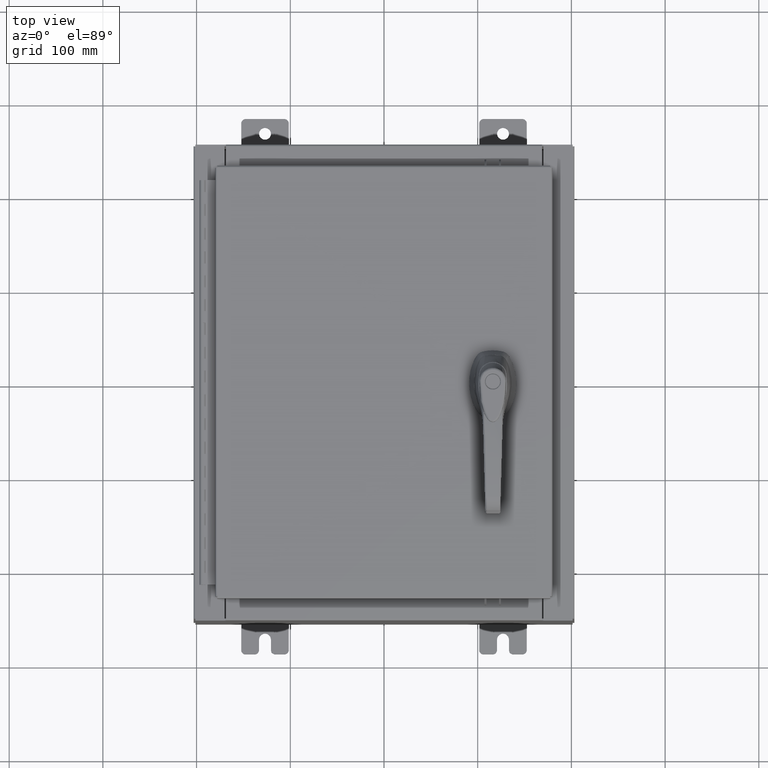
[diagram: clean part render]
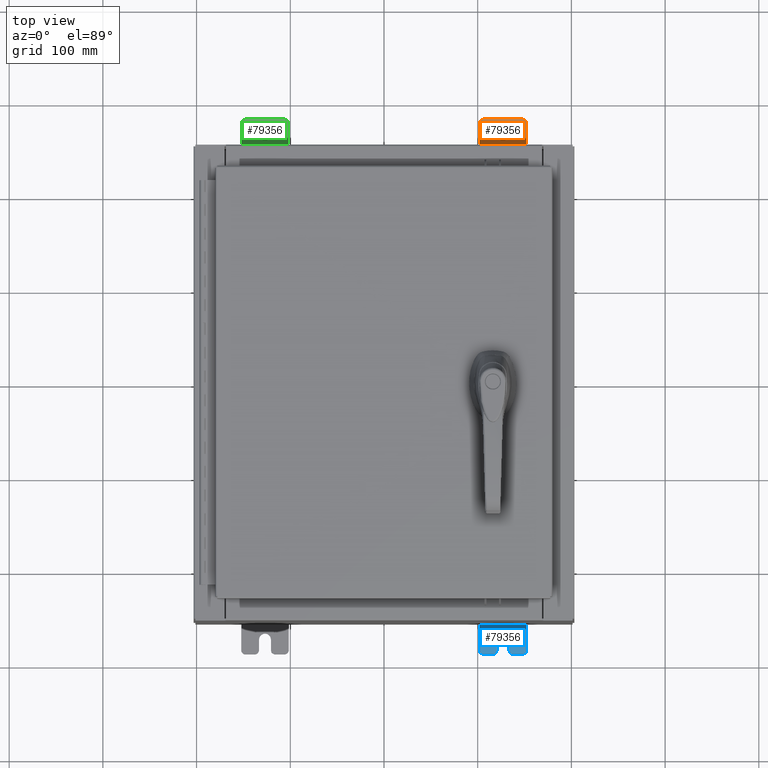
[diagram: same view with three faces highlighted in distinct colors, each labeled with its STEP entity id]
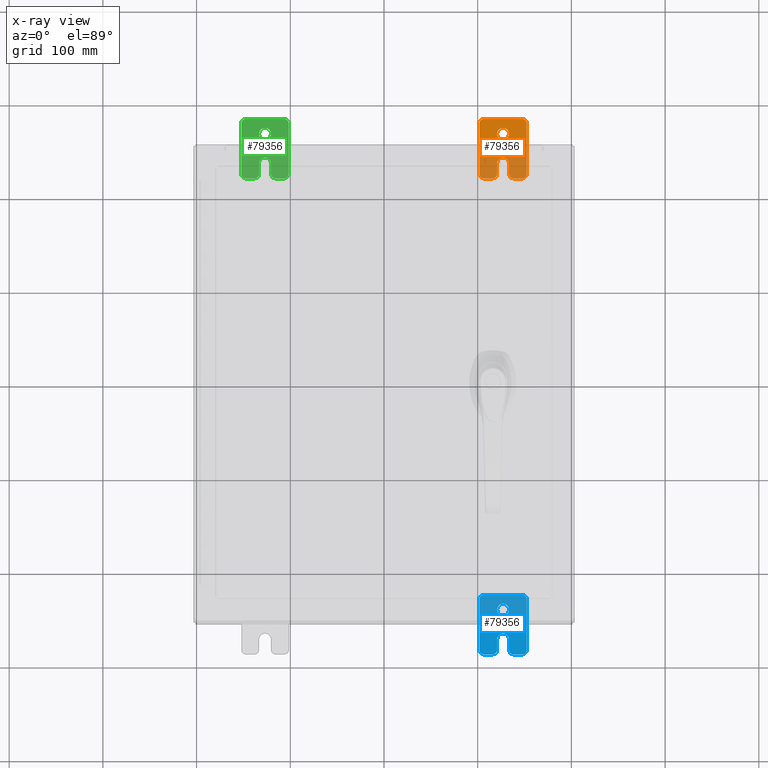
[diagram: x-ray of the same camera — body ghosted, the three highlighted faces saturated]
A machine part, top view with three faces highlighted in distinct colors.
The next image is the same camera in x-ray (body ghosted, the three faces saturated) — at least one of them is partly hidden behind the body in this view.
Their STEP definitions:

[orange] entity #79356 — the highlighted planar face has unit normal (0, 0, 1).
#63 = EDGE_CURVE ( 'NONE', #74154, #75641, #40511, .T. ) ;
#1338 = CARTESIAN_POINT ( 'NONE',  ( 0.0000000000000000000, -1.060000000000001600, 0.8099999999999978300 ) ) ;
#1540 = VERTEX_POINT ( 'NONE', #70888 ) ;
#2170 = ORIENTED_EDGE ( 'NONE', *, *, #15213, .F. ) ;
#4001 = CARTESIAN_POINT ( 'NONE',  ( 0.0000000000000000000, 1.059999999999996300, 0.8099999999999938400 ) ) ;
#4190 = VERTEX_POINT ( 'NONE', #11108 ) ;
#5420 = AXIS2_PLACEMENT_3D ( 'NONE', #1338, #60386, #9862 ) ;
#6063 = PLANE ( 'NONE',  #100843 ) ;
#8428 = FACE_OUTER_BOUND ( 'NONE', #12739, .T. ) ;
#8539 = VERTEX_POINT ( 'NONE', #33837 ) ;
#8693 = CARTESIAN_POINT ( 'NONE',  ( 0.0000000000000000000, -1.060000000000003400, -0.4400000000000005000 ) ) ;
#9027 = CARTESIAN_POINT ( 'NONE',  ( 4.039428427013647300E-016, 0.6249999999999992200, -9.783840404509077400E-018 ) ) ;
#9862 = DIRECTION ( 'NONE',  ( 0.0000000000000000000, 0.0000000000000000000, -1.000000000000000000 ) ) ;
#10707 = CARTESIAN_POINT ( 'NONE',  ( 4.780733988912460100E-016, -0.6249999999999993300, 5.858939755051854500E-017 ) ) ;
#11108 = CARTESIAN_POINT ( 'NONE',  ( 0.0000000000000000000, -1.250000000000002400, 0.8099999999999980500 ) ) ;
#12178 = VERTEX_POINT ( 'NONE', #56199 ) ;
#12205 = EDGE_CURVE ( 'NONE', #70939, #34078, #78589, .T. ) ;
#12739 = EDGE_LOOP ( 'NONE', ( #30238, #95864, #66209, #50522, #19311, #23119, #79404, #55736, #64327, #104050, #98022, #28269, #105781, #59422 ) ) ;
#13902 = EDGE_CURVE ( 'NONE', #58920, #12178, #69188, .T. ) ;
#14054 = DIRECTION ( 'NONE',  ( 0.0000000000000000000, 0.0000000000000000000, -1.000000000000000000 ) ) ;
#15213 = EDGE_CURVE ( 'NONE', #101962, #47911, #107274, .T. ) ;
#16481 = LINE ( 'NONE', #95394, #21755 ) ;
#17232 = DIRECTION ( 'NONE',  ( 0.0000000000000000000, 0.0000000000000000000, -1.000000000000000000 ) ) ;
#17574 = DIRECTION ( 'NONE',  ( -5.163192708025533800E-017, 0.0000000000000000000, -1.000000000000000000 ) ) ;
#17577 = CARTESIAN_POINT ( 'NONE',  ( 0.0000000000000000000, 1.059999999999993600, -0.8100000000000089400 ) ) ;
#18076 = DIRECTION ( 'NONE',  ( 0.0000000000000000000, 1.639108796198553600E-015, 1.000000000000000000 ) ) ;
#19233 = DIRECTION ( 'NONE',  ( -6.523827964459551700E-016, -1.000000000000000000, 0.0000000000000000000 ) ) ;
#19311 = ORIENTED_EDGE ( 'NONE', *, *, #20942, .T. ) ;
#19789 = CARTESIAN_POINT ( 'NONE',  ( 4.168508244714285900E-016, 0.6249999999999992200, 0.2499999999999999200 ) ) ;
#20924 = CARTESIAN_POINT ( 'NONE',  ( 0.0000000000000000000, -1.060000000000004100, -0.8100000000000050500 ) ) ;
#20942 = EDGE_CURVE ( 'NONE', #12178, #8539, #24412, .T. ) ;
#21755 = VECTOR ( 'NONE', #36419, 39.37007874015748100 ) ;
#23118 = DIRECTION ( 'NONE',  ( -0.0000000000000000000, 0.0000000000000000000, -1.000000000000000000 ) ) ;
#23119 = ORIENTED_EDGE ( 'NONE', *, *, #42427, .T. ) ;
#24412 = LINE ( 'NONE', #39401, #46761 ) ;
#24998 = VECTOR ( 'NONE', #51723, 39.37007874015748100 ) ;
#26014 = DIRECTION ( 'NONE',  ( 0.0000000000000000000, 0.0000000000000000000, -1.000000000000000000 ) ) ;
#26322 = CARTESIAN_POINT ( 'NONE',  ( 0.0000000000000000000, -1.250000000000002200, 0.9999999999999992200 ) ) ;
#27627 = LINE ( 'NONE', #26322, #24998 ) ;
#28269 = ORIENTED_EDGE ( 'NONE', *, *, #38542, .T. ) ;
#28487 = CIRCLE ( 'NONE', #87081, 0.1900000000000011100 ) ;
#28857 = CARTESIAN_POINT ( 'NONE',  ( 0.0000000000000000000, -1.060000000000004500, -1.000000000000006400 ) ) ;
#29272 = DIRECTION ( 'NONE',  ( 1.000000000000000000, 0.0000000000000000000, -0.0000000000000000000 ) ) ;
#29636 = LINE ( 'NONE', #58112, #94250 ) ;
#30238 = ORIENTED_EDGE ( 'NONE', *, *, #12205, .T. ) ;
#31206 = CARTESIAN_POINT ( 'NONE',  ( 0.0000000000000000000, 1.249999999999997600, 0.9999999999999951200 ) ) ;
#31248 = AXIS2_PLACEMENT_3D ( 'NONE', #4001, #64547, #14054 ) ;
#31309 = DIRECTION ( 'NONE',  ( 6.556435184794182400E-016, 1.000000000000000000, 0.0000000000000000000 ) ) ;
#32064 = EDGE_CURVE ( 'NONE', #34078, #4190, #32588, .T. ) ;
#32588 = CIRCLE ( 'NONE', #5420, 0.1900000000000011100 ) ;
#32618 = VECTOR ( 'NONE', #105106, 39.37007874015748100 ) ;
#32654 = CARTESIAN_POINT ( 'NONE',  ( 4.039428427013647300E-016, 0.6249999999999992200, -9.783840404509077400E-018 ) ) ;
#33837 = CARTESIAN_POINT ( 'NONE',  ( 0.0000000000000000000, -0.6249999999999992200, 0.2500000000000005000 ) ) ;
#34078 = VERTEX_POINT ( 'NONE', #71648 ) ;
#35787 = CIRCLE ( 'NONE', #70936, 0.2499999999999999200 ) ;
#35800 = EDGE_LOOP ( 'NONE', ( #2170, #86138 ) ) ;
#36419 = DIRECTION ( 'NONE',  ( -6.556435184794182400E-016, -1.000000000000000000, -1.639108796198545600E-016 ) ) ;
#37588 = AXIS2_PLACEMENT_3D ( 'NONE', #79712, #29272, #88213 ) ;
#38444 = EDGE_CURVE ( 'NONE', #4190, #58920, #29636, .T. ) ;
#38542 = EDGE_CURVE ( 'NONE', #83819, #103251, #49416, .T. ) ;
#38728 = CIRCLE ( 'NONE', #31248, 0.1900000000000011100 ) ;
#39401 = CARTESIAN_POINT ( 'NONE',  ( 6.829619984160658000E-017, -1.250000000000003800, 0.2500000000000005000 ) ) ;
#39724 = EDGE_CURVE ( 'NONE', #1540, #70939, #38728, .T. ) ;
#40511 = CIRCLE ( 'NONE', #60687, 0.1900000000000011100 ) ;
#41139 = DIRECTION ( 'NONE',  ( -5.163192708025533800E-017, 0.0000000000000000000, -1.000000000000000000 ) ) ;
#42427 = EDGE_CURVE ( 'NONE', #8539, #72920, #35787, .T. ) ;
#43438 = DIRECTION ( 'NONE',  ( 0.0000000000000000000, 0.0000000000000000000, -1.000000000000000000 ) ) ;
#43969 = VERTEX_POINT ( 'NONE', #53438 ) ;
#44004 = CARTESIAN_POINT ( 'NONE',  ( 0.0000000000000000000, 1.059999999999996500, 0.9999999999999953400 ) ) ;
#46761 = VECTOR ( 'NONE', #31309, 39.37007874015748100 ) ;
#47911 = VERTEX_POINT ( 'NONE', #19789 ) ;
#48086 = EDGE_CURVE ( 'NONE', #47911, #101962, #50649, .T. ) ;
#48129 = DIRECTION ( 'NONE',  ( 0.0000000000000000000, -1.000000000000000000, 1.639108796198558100E-015 ) ) ;
#49416 = CIRCLE ( 'NONE', #68565, 0.1900000000000011100 ) ;
#50522 = ORIENTED_EDGE ( 'NONE', *, *, #13902, .T. ) ;
#50648 = FACE_BOUND ( 'NONE', #35800, .T. ) ;
#50649 = CIRCLE ( 'NONE', #57080, 0.2499999999999999200 ) ;
#51723 = DIRECTION ( 'NONE',  ( 0.0000000000000000000, -1.639108796198553600E-015, -1.000000000000000000 ) ) ;
#52291 = LINE ( 'NONE', #80388, #32618 ) ;
#53438 = CARTESIAN_POINT ( 'NONE',  ( 1.928684683526964400E-016, -1.060000000000003400, -0.2499999999999994400 ) ) ;
#53701 = EDGE_CURVE ( 'NONE', #91617, #74154, #27627, .T. ) ;
#55736 = ORIENTED_EDGE ( 'NONE', *, *, #89139, .T. ) ;
#56166 = VECTOR ( 'NONE', #48129, 39.37007874015748100 ) ;
#56199 = CARTESIAN_POINT ( 'NONE',  ( 1.928684683526972300E-016, -1.060000000000002100, 0.2500000000000005000 ) ) ;
#57080 = AXIS2_PLACEMENT_3D ( 'NONE', #32654, #91593, #41139 ) ;
#58112 = CARTESIAN_POINT ( 'NONE',  ( 0.0000000000000000000, -1.250000000000002200, 0.9999999999999992200 ) ) ;
#58920 = VERTEX_POINT ( 'NONE', #65140 ) ;
#59422 = ORIENTED_EDGE ( 'NONE', *, *, #39724, .T. ) ;
#59749 = CARTESIAN_POINT ( 'NONE',  ( 4.780733988912460100E-016, -0.6249999999999993300, -0.2499999999999998600 ) ) ;
#60386 = DIRECTION ( 'NONE',  ( 1.000000000000000000, 0.0000000000000000000, -0.0000000000000000000 ) ) ;
#60687 = AXIS2_PLACEMENT_3D ( 'NONE', #20924, #82285, #43438 ) ;
#61489 = CARTESIAN_POINT ( 'NONE',  ( 0.0000000000000000000, -1.250000000000004700, -0.4400000000000002200 ) ) ;
#62030 = EDGE_CURVE ( 'NONE', #72920, #43969, #16481, .T. ) ;
#64327 = ORIENTED_EDGE ( 'NONE', *, *, #53701, .T. ) ;
#64547 = DIRECTION ( 'NONE',  ( 1.000000000000000000, 0.0000000000000000000, -0.0000000000000000000 ) ) ;
#65105 = CARTESIAN_POINT ( 'NONE',  ( 0.0000000000000000000, 0.0000000000000000000, 0.0000000000000000000 ) ) ;
#65140 = CARTESIAN_POINT ( 'NONE',  ( 0.0000000000000000000, -1.250000000000003100, 0.4400000000000020000 ) ) ;
#66209 = ORIENTED_EDGE ( 'NONE', *, *, #38444, .T. ) ;
#66619 = DIRECTION ( 'NONE',  ( 0.0000000000000000000, -1.639108796198553600E-015, -1.000000000000000000 ) ) ;
#67693 = DIRECTION ( 'NONE',  ( 1.000000000000000000, 0.0000000000000000000, -0.0000000000000000000 ) ) ;
#68022 = DIRECTION ( 'NONE',  ( 1.000000000000000000, -0.0000000000000000000, -5.163192708025532000E-017 ) ) ;
#68510 = CARTESIAN_POINT ( 'NONE',  ( 0.0000000000000000000, 1.249999999999994200, -1.000000000000010400 ) ) ;
#68565 = AXIS2_PLACEMENT_3D ( 'NONE', #17577, #76491, #26014 ) ;
#69188 = CIRCLE ( 'NONE', #37588, 0.1900000000000011400 ) ;
#69662 = DIRECTION ( 'NONE',  ( -1.000000000000000000, 6.523827964459549700E-016, 5.163192708025532000E-017 ) ) ;
#70888 = CARTESIAN_POINT ( 'NONE',  ( 0.0000000000000000000, 1.249999999999997300, 0.8099999999999935000 ) ) ;
#70936 = AXIS2_PLACEMENT_3D ( 'NONE', #10707, #69662, #19233 ) ;
#70939 = VERTEX_POINT ( 'NONE', #44004 ) ;
#71648 = CARTESIAN_POINT ( 'NONE',  ( 0.0000000000000000000, -1.060000000000001200, 0.9999999999999988900 ) ) ;
#72920 = VERTEX_POINT ( 'NONE', #59749 ) ;
#73552 = DIRECTION ( 'NONE',  ( 1.000000000000000000, 0.0000000000000000000, -0.0000000000000000000 ) ) ;
#74154 = VERTEX_POINT ( 'NONE', #97762 ) ;
#75189 = CARTESIAN_POINT ( 'NONE',  ( 3.910348609313009100E-016, 0.6249999999999992200, -0.2499999999999999200 ) ) ;
#75641 = VERTEX_POINT ( 'NONE', #28857 ) ;
#75735 = EDGE_CURVE ( 'NONE', #75641, #83819, #52291, .T. ) ;
#76491 = DIRECTION ( 'NONE',  ( 1.000000000000000000, 0.0000000000000000000, -0.0000000000000000000 ) ) ;
#78589 = LINE ( 'NONE', #31206, #56166 ) ;
#79356 = ADVANCED_FACE ( 'NONE', ( #50648, #8428 ), #6063, .T. ) ;
#79404 = ORIENTED_EDGE ( 'NONE', *, *, #62030, .T. ) ;
#79712 = CARTESIAN_POINT ( 'NONE',  ( 0.0000000000000000000, -1.060000000000002100, 0.4400000000000016700 ) ) ;
#80388 = CARTESIAN_POINT ( 'NONE',  ( 0.0000000000000000000, -1.250000000000005600, -1.000000000000006200 ) ) ;
#82285 = DIRECTION ( 'NONE',  ( 1.000000000000000000, 0.0000000000000000000, -0.0000000000000000000 ) ) ;
#83431 = LINE ( 'NONE', #68510, #97885 ) ;
#83819 = VERTEX_POINT ( 'NONE', #101698 ) ;
#84266 = AXIS2_PLACEMENT_3D ( 'NONE', #9027, #68022, #17574 ) ;
#86138 = ORIENTED_EDGE ( 'NONE', *, *, #48086, .F. ) ;
#87081 = AXIS2_PLACEMENT_3D ( 'NONE', #8693, #67693, #17232 ) ;
#88213 = DIRECTION ( 'NONE',  ( 0.0000000000000000000, 0.0000000000000000000, -1.000000000000000000 ) ) ;
#89139 = EDGE_CURVE ( 'NONE', #43969, #91617, #28487, .T. ) ;
#91175 = CARTESIAN_POINT ( 'NONE',  ( 0.0000000000000000000, 1.249999999999994700, -0.8100000000000092700 ) ) ;
#91593 = DIRECTION ( 'NONE',  ( 1.000000000000000000, -0.0000000000000000000, -5.163192708025532000E-017 ) ) ;
#91617 = VERTEX_POINT ( 'NONE', #61489 ) ;
#94250 = VECTOR ( 'NONE', #66619, 39.37007874015748100 ) ;
#94850 = EDGE_CURVE ( 'NONE', #103251, #1540, #83431, .T. ) ;
#95394 = CARTESIAN_POINT ( 'NONE',  ( 4.780733988912460100E-016, -0.6249999999999993300, -0.2499999999999993900 ) ) ;
#95864 = ORIENTED_EDGE ( 'NONE', *, *, #32064, .T. ) ;
#97762 = CARTESIAN_POINT ( 'NONE',  ( 0.0000000000000000000, -1.250000000000005300, -0.8100000000000047200 ) ) ;
#97885 = VECTOR ( 'NONE', #18076, 39.37007874015748100 ) ;
#98022 = ORIENTED_EDGE ( 'NONE', *, *, #75735, .T. ) ;
#100843 = AXIS2_PLACEMENT_3D ( 'NONE', #65105, #73552, #23118 ) ;
#101698 = CARTESIAN_POINT ( 'NONE',  ( 0.0000000000000000000, 1.059999999999993400, -1.000000000000010000 ) ) ;
#101962 = VERTEX_POINT ( 'NONE', #75189 ) ;
#103251 = VERTEX_POINT ( 'NONE', #91175 ) ;
#104050 = ORIENTED_EDGE ( 'NONE', *, *, #63, .T. ) ;
#105106 = DIRECTION ( 'NONE',  ( 0.0000000000000000000, 1.000000000000000000, -1.639108796198558100E-015 ) ) ;
#105781 = ORIENTED_EDGE ( 'NONE', *, *, #94850, .T. ) ;
#107274 = CIRCLE ( 'NONE', #84266, 0.2499999999999999200 ) ;

[blue] entity #79356 — the highlighted planar face has unit normal (0, 0, 1).
#63 = EDGE_CURVE ( 'NONE', #74154, #75641, #40511, .T. ) ;
#1338 = CARTESIAN_POINT ( 'NONE',  ( 0.0000000000000000000, -1.060000000000001600, 0.8099999999999978300 ) ) ;
#1540 = VERTEX_POINT ( 'NONE', #70888 ) ;
#2170 = ORIENTED_EDGE ( 'NONE', *, *, #15213, .F. ) ;
#4001 = CARTESIAN_POINT ( 'NONE',  ( 0.0000000000000000000, 1.059999999999996300, 0.8099999999999938400 ) ) ;
#4190 = VERTEX_POINT ( 'NONE', #11108 ) ;
#5420 = AXIS2_PLACEMENT_3D ( 'NONE', #1338, #60386, #9862 ) ;
#6063 = PLANE ( 'NONE',  #100843 ) ;
#8428 = FACE_OUTER_BOUND ( 'NONE', #12739, .T. ) ;
#8539 = VERTEX_POINT ( 'NONE', #33837 ) ;
#8693 = CARTESIAN_POINT ( 'NONE',  ( 0.0000000000000000000, -1.060000000000003400, -0.4400000000000005000 ) ) ;
#9027 = CARTESIAN_POINT ( 'NONE',  ( 4.039428427013647300E-016, 0.6249999999999992200, -9.783840404509077400E-018 ) ) ;
#9862 = DIRECTION ( 'NONE',  ( 0.0000000000000000000, 0.0000000000000000000, -1.000000000000000000 ) ) ;
#10707 = CARTESIAN_POINT ( 'NONE',  ( 4.780733988912460100E-016, -0.6249999999999993300, 5.858939755051854500E-017 ) ) ;
#11108 = CARTESIAN_POINT ( 'NONE',  ( 0.0000000000000000000, -1.250000000000002400, 0.8099999999999980500 ) ) ;
#12178 = VERTEX_POINT ( 'NONE', #56199 ) ;
#12205 = EDGE_CURVE ( 'NONE', #70939, #34078, #78589, .T. ) ;
#12739 = EDGE_LOOP ( 'NONE', ( #30238, #95864, #66209, #50522, #19311, #23119, #79404, #55736, #64327, #104050, #98022, #28269, #105781, #59422 ) ) ;
#13902 = EDGE_CURVE ( 'NONE', #58920, #12178, #69188, .T. ) ;
#14054 = DIRECTION ( 'NONE',  ( 0.0000000000000000000, 0.0000000000000000000, -1.000000000000000000 ) ) ;
#15213 = EDGE_CURVE ( 'NONE', #101962, #47911, #107274, .T. ) ;
#16481 = LINE ( 'NONE', #95394, #21755 ) ;
#17232 = DIRECTION ( 'NONE',  ( 0.0000000000000000000, 0.0000000000000000000, -1.000000000000000000 ) ) ;
#17574 = DIRECTION ( 'NONE',  ( -5.163192708025533800E-017, 0.0000000000000000000, -1.000000000000000000 ) ) ;
#17577 = CARTESIAN_POINT ( 'NONE',  ( 0.0000000000000000000, 1.059999999999993600, -0.8100000000000089400 ) ) ;
#18076 = DIRECTION ( 'NONE',  ( 0.0000000000000000000, 1.639108796198553600E-015, 1.000000000000000000 ) ) ;
#19233 = DIRECTION ( 'NONE',  ( -6.523827964459551700E-016, -1.000000000000000000, 0.0000000000000000000 ) ) ;
#19311 = ORIENTED_EDGE ( 'NONE', *, *, #20942, .T. ) ;
#19789 = CARTESIAN_POINT ( 'NONE',  ( 4.168508244714285900E-016, 0.6249999999999992200, 0.2499999999999999200 ) ) ;
#20924 = CARTESIAN_POINT ( 'NONE',  ( 0.0000000000000000000, -1.060000000000004100, -0.8100000000000050500 ) ) ;
#20942 = EDGE_CURVE ( 'NONE', #12178, #8539, #24412, .T. ) ;
#21755 = VECTOR ( 'NONE', #36419, 39.37007874015748100 ) ;
#23118 = DIRECTION ( 'NONE',  ( -0.0000000000000000000, 0.0000000000000000000, -1.000000000000000000 ) ) ;
#23119 = ORIENTED_EDGE ( 'NONE', *, *, #42427, .T. ) ;
#24412 = LINE ( 'NONE', #39401, #46761 ) ;
#24998 = VECTOR ( 'NONE', #51723, 39.37007874015748100 ) ;
#26014 = DIRECTION ( 'NONE',  ( 0.0000000000000000000, 0.0000000000000000000, -1.000000000000000000 ) ) ;
#26322 = CARTESIAN_POINT ( 'NONE',  ( 0.0000000000000000000, -1.250000000000002200, 0.9999999999999992200 ) ) ;
#27627 = LINE ( 'NONE', #26322, #24998 ) ;
#28269 = ORIENTED_EDGE ( 'NONE', *, *, #38542, .T. ) ;
#28487 = CIRCLE ( 'NONE', #87081, 0.1900000000000011100 ) ;
#28857 = CARTESIAN_POINT ( 'NONE',  ( 0.0000000000000000000, -1.060000000000004500, -1.000000000000006400 ) ) ;
#29272 = DIRECTION ( 'NONE',  ( 1.000000000000000000, 0.0000000000000000000, -0.0000000000000000000 ) ) ;
#29636 = LINE ( 'NONE', #58112, #94250 ) ;
#30238 = ORIENTED_EDGE ( 'NONE', *, *, #12205, .T. ) ;
#31206 = CARTESIAN_POINT ( 'NONE',  ( 0.0000000000000000000, 1.249999999999997600, 0.9999999999999951200 ) ) ;
#31248 = AXIS2_PLACEMENT_3D ( 'NONE', #4001, #64547, #14054 ) ;
#31309 = DIRECTION ( 'NONE',  ( 6.556435184794182400E-016, 1.000000000000000000, 0.0000000000000000000 ) ) ;
#32064 = EDGE_CURVE ( 'NONE', #34078, #4190, #32588, .T. ) ;
#32588 = CIRCLE ( 'NONE', #5420, 0.1900000000000011100 ) ;
#32618 = VECTOR ( 'NONE', #105106, 39.37007874015748100 ) ;
#32654 = CARTESIAN_POINT ( 'NONE',  ( 4.039428427013647300E-016, 0.6249999999999992200, -9.783840404509077400E-018 ) ) ;
#33837 = CARTESIAN_POINT ( 'NONE',  ( 0.0000000000000000000, -0.6249999999999992200, 0.2500000000000005000 ) ) ;
#34078 = VERTEX_POINT ( 'NONE', #71648 ) ;
#35787 = CIRCLE ( 'NONE', #70936, 0.2499999999999999200 ) ;
#35800 = EDGE_LOOP ( 'NONE', ( #2170, #86138 ) ) ;
#36419 = DIRECTION ( 'NONE',  ( -6.556435184794182400E-016, -1.000000000000000000, -1.639108796198545600E-016 ) ) ;
#37588 = AXIS2_PLACEMENT_3D ( 'NONE', #79712, #29272, #88213 ) ;
#38444 = EDGE_CURVE ( 'NONE', #4190, #58920, #29636, .T. ) ;
#38542 = EDGE_CURVE ( 'NONE', #83819, #103251, #49416, .T. ) ;
#38728 = CIRCLE ( 'NONE', #31248, 0.1900000000000011100 ) ;
#39401 = CARTESIAN_POINT ( 'NONE',  ( 6.829619984160658000E-017, -1.250000000000003800, 0.2500000000000005000 ) ) ;
#39724 = EDGE_CURVE ( 'NONE', #1540, #70939, #38728, .T. ) ;
#40511 = CIRCLE ( 'NONE', #60687, 0.1900000000000011100 ) ;
#41139 = DIRECTION ( 'NONE',  ( -5.163192708025533800E-017, 0.0000000000000000000, -1.000000000000000000 ) ) ;
#42427 = EDGE_CURVE ( 'NONE', #8539, #72920, #35787, .T. ) ;
#43438 = DIRECTION ( 'NONE',  ( 0.0000000000000000000, 0.0000000000000000000, -1.000000000000000000 ) ) ;
#43969 = VERTEX_POINT ( 'NONE', #53438 ) ;
#44004 = CARTESIAN_POINT ( 'NONE',  ( 0.0000000000000000000, 1.059999999999996500, 0.9999999999999953400 ) ) ;
#46761 = VECTOR ( 'NONE', #31309, 39.37007874015748100 ) ;
#47911 = VERTEX_POINT ( 'NONE', #19789 ) ;
#48086 = EDGE_CURVE ( 'NONE', #47911, #101962, #50649, .T. ) ;
#48129 = DIRECTION ( 'NONE',  ( 0.0000000000000000000, -1.000000000000000000, 1.639108796198558100E-015 ) ) ;
#49416 = CIRCLE ( 'NONE', #68565, 0.1900000000000011100 ) ;
#50522 = ORIENTED_EDGE ( 'NONE', *, *, #13902, .T. ) ;
#50648 = FACE_BOUND ( 'NONE', #35800, .T. ) ;
#50649 = CIRCLE ( 'NONE', #57080, 0.2499999999999999200 ) ;
#51723 = DIRECTION ( 'NONE',  ( 0.0000000000000000000, -1.639108796198553600E-015, -1.000000000000000000 ) ) ;
#52291 = LINE ( 'NONE', #80388, #32618 ) ;
#53438 = CARTESIAN_POINT ( 'NONE',  ( 1.928684683526964400E-016, -1.060000000000003400, -0.2499999999999994400 ) ) ;
#53701 = EDGE_CURVE ( 'NONE', #91617, #74154, #27627, .T. ) ;
#55736 = ORIENTED_EDGE ( 'NONE', *, *, #89139, .T. ) ;
#56166 = VECTOR ( 'NONE', #48129, 39.37007874015748100 ) ;
#56199 = CARTESIAN_POINT ( 'NONE',  ( 1.928684683526972300E-016, -1.060000000000002100, 0.2500000000000005000 ) ) ;
#57080 = AXIS2_PLACEMENT_3D ( 'NONE', #32654, #91593, #41139 ) ;
#58112 = CARTESIAN_POINT ( 'NONE',  ( 0.0000000000000000000, -1.250000000000002200, 0.9999999999999992200 ) ) ;
#58920 = VERTEX_POINT ( 'NONE', #65140 ) ;
#59422 = ORIENTED_EDGE ( 'NONE', *, *, #39724, .T. ) ;
#59749 = CARTESIAN_POINT ( 'NONE',  ( 4.780733988912460100E-016, -0.6249999999999993300, -0.2499999999999998600 ) ) ;
#60386 = DIRECTION ( 'NONE',  ( 1.000000000000000000, 0.0000000000000000000, -0.0000000000000000000 ) ) ;
#60687 = AXIS2_PLACEMENT_3D ( 'NONE', #20924, #82285, #43438 ) ;
#61489 = CARTESIAN_POINT ( 'NONE',  ( 0.0000000000000000000, -1.250000000000004700, -0.4400000000000002200 ) ) ;
#62030 = EDGE_CURVE ( 'NONE', #72920, #43969, #16481, .T. ) ;
#64327 = ORIENTED_EDGE ( 'NONE', *, *, #53701, .T. ) ;
#64547 = DIRECTION ( 'NONE',  ( 1.000000000000000000, 0.0000000000000000000, -0.0000000000000000000 ) ) ;
#65105 = CARTESIAN_POINT ( 'NONE',  ( 0.0000000000000000000, 0.0000000000000000000, 0.0000000000000000000 ) ) ;
#65140 = CARTESIAN_POINT ( 'NONE',  ( 0.0000000000000000000, -1.250000000000003100, 0.4400000000000020000 ) ) ;
#66209 = ORIENTED_EDGE ( 'NONE', *, *, #38444, .T. ) ;
#66619 = DIRECTION ( 'NONE',  ( 0.0000000000000000000, -1.639108796198553600E-015, -1.000000000000000000 ) ) ;
#67693 = DIRECTION ( 'NONE',  ( 1.000000000000000000, 0.0000000000000000000, -0.0000000000000000000 ) ) ;
#68022 = DIRECTION ( 'NONE',  ( 1.000000000000000000, -0.0000000000000000000, -5.163192708025532000E-017 ) ) ;
#68510 = CARTESIAN_POINT ( 'NONE',  ( 0.0000000000000000000, 1.249999999999994200, -1.000000000000010400 ) ) ;
#68565 = AXIS2_PLACEMENT_3D ( 'NONE', #17577, #76491, #26014 ) ;
#69188 = CIRCLE ( 'NONE', #37588, 0.1900000000000011400 ) ;
#69662 = DIRECTION ( 'NONE',  ( -1.000000000000000000, 6.523827964459549700E-016, 5.163192708025532000E-017 ) ) ;
#70888 = CARTESIAN_POINT ( 'NONE',  ( 0.0000000000000000000, 1.249999999999997300, 0.8099999999999935000 ) ) ;
#70936 = AXIS2_PLACEMENT_3D ( 'NONE', #10707, #69662, #19233 ) ;
#70939 = VERTEX_POINT ( 'NONE', #44004 ) ;
#71648 = CARTESIAN_POINT ( 'NONE',  ( 0.0000000000000000000, -1.060000000000001200, 0.9999999999999988900 ) ) ;
#72920 = VERTEX_POINT ( 'NONE', #59749 ) ;
#73552 = DIRECTION ( 'NONE',  ( 1.000000000000000000, 0.0000000000000000000, -0.0000000000000000000 ) ) ;
#74154 = VERTEX_POINT ( 'NONE', #97762 ) ;
#75189 = CARTESIAN_POINT ( 'NONE',  ( 3.910348609313009100E-016, 0.6249999999999992200, -0.2499999999999999200 ) ) ;
#75641 = VERTEX_POINT ( 'NONE', #28857 ) ;
#75735 = EDGE_CURVE ( 'NONE', #75641, #83819, #52291, .T. ) ;
#76491 = DIRECTION ( 'NONE',  ( 1.000000000000000000, 0.0000000000000000000, -0.0000000000000000000 ) ) ;
#78589 = LINE ( 'NONE', #31206, #56166 ) ;
#79356 = ADVANCED_FACE ( 'NONE', ( #50648, #8428 ), #6063, .T. ) ;
#79404 = ORIENTED_EDGE ( 'NONE', *, *, #62030, .T. ) ;
#79712 = CARTESIAN_POINT ( 'NONE',  ( 0.0000000000000000000, -1.060000000000002100, 0.4400000000000016700 ) ) ;
#80388 = CARTESIAN_POINT ( 'NONE',  ( 0.0000000000000000000, -1.250000000000005600, -1.000000000000006200 ) ) ;
#82285 = DIRECTION ( 'NONE',  ( 1.000000000000000000, 0.0000000000000000000, -0.0000000000000000000 ) ) ;
#83431 = LINE ( 'NONE', #68510, #97885 ) ;
#83819 = VERTEX_POINT ( 'NONE', #101698 ) ;
#84266 = AXIS2_PLACEMENT_3D ( 'NONE', #9027, #68022, #17574 ) ;
#86138 = ORIENTED_EDGE ( 'NONE', *, *, #48086, .F. ) ;
#87081 = AXIS2_PLACEMENT_3D ( 'NONE', #8693, #67693, #17232 ) ;
#88213 = DIRECTION ( 'NONE',  ( 0.0000000000000000000, 0.0000000000000000000, -1.000000000000000000 ) ) ;
#89139 = EDGE_CURVE ( 'NONE', #43969, #91617, #28487, .T. ) ;
#91175 = CARTESIAN_POINT ( 'NONE',  ( 0.0000000000000000000, 1.249999999999994700, -0.8100000000000092700 ) ) ;
#91593 = DIRECTION ( 'NONE',  ( 1.000000000000000000, -0.0000000000000000000, -5.163192708025532000E-017 ) ) ;
#91617 = VERTEX_POINT ( 'NONE', #61489 ) ;
#94250 = VECTOR ( 'NONE', #66619, 39.37007874015748100 ) ;
#94850 = EDGE_CURVE ( 'NONE', #103251, #1540, #83431, .T. ) ;
#95394 = CARTESIAN_POINT ( 'NONE',  ( 4.780733988912460100E-016, -0.6249999999999993300, -0.2499999999999993900 ) ) ;
#95864 = ORIENTED_EDGE ( 'NONE', *, *, #32064, .T. ) ;
#97762 = CARTESIAN_POINT ( 'NONE',  ( 0.0000000000000000000, -1.250000000000005300, -0.8100000000000047200 ) ) ;
#97885 = VECTOR ( 'NONE', #18076, 39.37007874015748100 ) ;
#98022 = ORIENTED_EDGE ( 'NONE', *, *, #75735, .T. ) ;
#100843 = AXIS2_PLACEMENT_3D ( 'NONE', #65105, #73552, #23118 ) ;
#101698 = CARTESIAN_POINT ( 'NONE',  ( 0.0000000000000000000, 1.059999999999993400, -1.000000000000010000 ) ) ;
#101962 = VERTEX_POINT ( 'NONE', #75189 ) ;
#103251 = VERTEX_POINT ( 'NONE', #91175 ) ;
#104050 = ORIENTED_EDGE ( 'NONE', *, *, #63, .T. ) ;
#105106 = DIRECTION ( 'NONE',  ( 0.0000000000000000000, 1.000000000000000000, -1.639108796198558100E-015 ) ) ;
#105781 = ORIENTED_EDGE ( 'NONE', *, *, #94850, .T. ) ;
#107274 = CIRCLE ( 'NONE', #84266, 0.2499999999999999200 ) ;

[green] entity #79356 — the highlighted planar face has unit normal (0, 0, 1).
#63 = EDGE_CURVE ( 'NONE', #74154, #75641, #40511, .T. ) ;
#1338 = CARTESIAN_POINT ( 'NONE',  ( 0.0000000000000000000, -1.060000000000001600, 0.8099999999999978300 ) ) ;
#1540 = VERTEX_POINT ( 'NONE', #70888 ) ;
#2170 = ORIENTED_EDGE ( 'NONE', *, *, #15213, .F. ) ;
#4001 = CARTESIAN_POINT ( 'NONE',  ( 0.0000000000000000000, 1.059999999999996300, 0.8099999999999938400 ) ) ;
#4190 = VERTEX_POINT ( 'NONE', #11108 ) ;
#5420 = AXIS2_PLACEMENT_3D ( 'NONE', #1338, #60386, #9862 ) ;
#6063 = PLANE ( 'NONE',  #100843 ) ;
#8428 = FACE_OUTER_BOUND ( 'NONE', #12739, .T. ) ;
#8539 = VERTEX_POINT ( 'NONE', #33837 ) ;
#8693 = CARTESIAN_POINT ( 'NONE',  ( 0.0000000000000000000, -1.060000000000003400, -0.4400000000000005000 ) ) ;
#9027 = CARTESIAN_POINT ( 'NONE',  ( 4.039428427013647300E-016, 0.6249999999999992200, -9.783840404509077400E-018 ) ) ;
#9862 = DIRECTION ( 'NONE',  ( 0.0000000000000000000, 0.0000000000000000000, -1.000000000000000000 ) ) ;
#10707 = CARTESIAN_POINT ( 'NONE',  ( 4.780733988912460100E-016, -0.6249999999999993300, 5.858939755051854500E-017 ) ) ;
#11108 = CARTESIAN_POINT ( 'NONE',  ( 0.0000000000000000000, -1.250000000000002400, 0.8099999999999980500 ) ) ;
#12178 = VERTEX_POINT ( 'NONE', #56199 ) ;
#12205 = EDGE_CURVE ( 'NONE', #70939, #34078, #78589, .T. ) ;
#12739 = EDGE_LOOP ( 'NONE', ( #30238, #95864, #66209, #50522, #19311, #23119, #79404, #55736, #64327, #104050, #98022, #28269, #105781, #59422 ) ) ;
#13902 = EDGE_CURVE ( 'NONE', #58920, #12178, #69188, .T. ) ;
#14054 = DIRECTION ( 'NONE',  ( 0.0000000000000000000, 0.0000000000000000000, -1.000000000000000000 ) ) ;
#15213 = EDGE_CURVE ( 'NONE', #101962, #47911, #107274, .T. ) ;
#16481 = LINE ( 'NONE', #95394, #21755 ) ;
#17232 = DIRECTION ( 'NONE',  ( 0.0000000000000000000, 0.0000000000000000000, -1.000000000000000000 ) ) ;
#17574 = DIRECTION ( 'NONE',  ( -5.163192708025533800E-017, 0.0000000000000000000, -1.000000000000000000 ) ) ;
#17577 = CARTESIAN_POINT ( 'NONE',  ( 0.0000000000000000000, 1.059999999999993600, -0.8100000000000089400 ) ) ;
#18076 = DIRECTION ( 'NONE',  ( 0.0000000000000000000, 1.639108796198553600E-015, 1.000000000000000000 ) ) ;
#19233 = DIRECTION ( 'NONE',  ( -6.523827964459551700E-016, -1.000000000000000000, 0.0000000000000000000 ) ) ;
#19311 = ORIENTED_EDGE ( 'NONE', *, *, #20942, .T. ) ;
#19789 = CARTESIAN_POINT ( 'NONE',  ( 4.168508244714285900E-016, 0.6249999999999992200, 0.2499999999999999200 ) ) ;
#20924 = CARTESIAN_POINT ( 'NONE',  ( 0.0000000000000000000, -1.060000000000004100, -0.8100000000000050500 ) ) ;
#20942 = EDGE_CURVE ( 'NONE', #12178, #8539, #24412, .T. ) ;
#21755 = VECTOR ( 'NONE', #36419, 39.37007874015748100 ) ;
#23118 = DIRECTION ( 'NONE',  ( -0.0000000000000000000, 0.0000000000000000000, -1.000000000000000000 ) ) ;
#23119 = ORIENTED_EDGE ( 'NONE', *, *, #42427, .T. ) ;
#24412 = LINE ( 'NONE', #39401, #46761 ) ;
#24998 = VECTOR ( 'NONE', #51723, 39.37007874015748100 ) ;
#26014 = DIRECTION ( 'NONE',  ( 0.0000000000000000000, 0.0000000000000000000, -1.000000000000000000 ) ) ;
#26322 = CARTESIAN_POINT ( 'NONE',  ( 0.0000000000000000000, -1.250000000000002200, 0.9999999999999992200 ) ) ;
#27627 = LINE ( 'NONE', #26322, #24998 ) ;
#28269 = ORIENTED_EDGE ( 'NONE', *, *, #38542, .T. ) ;
#28487 = CIRCLE ( 'NONE', #87081, 0.1900000000000011100 ) ;
#28857 = CARTESIAN_POINT ( 'NONE',  ( 0.0000000000000000000, -1.060000000000004500, -1.000000000000006400 ) ) ;
#29272 = DIRECTION ( 'NONE',  ( 1.000000000000000000, 0.0000000000000000000, -0.0000000000000000000 ) ) ;
#29636 = LINE ( 'NONE', #58112, #94250 ) ;
#30238 = ORIENTED_EDGE ( 'NONE', *, *, #12205, .T. ) ;
#31206 = CARTESIAN_POINT ( 'NONE',  ( 0.0000000000000000000, 1.249999999999997600, 0.9999999999999951200 ) ) ;
#31248 = AXIS2_PLACEMENT_3D ( 'NONE', #4001, #64547, #14054 ) ;
#31309 = DIRECTION ( 'NONE',  ( 6.556435184794182400E-016, 1.000000000000000000, 0.0000000000000000000 ) ) ;
#32064 = EDGE_CURVE ( 'NONE', #34078, #4190, #32588, .T. ) ;
#32588 = CIRCLE ( 'NONE', #5420, 0.1900000000000011100 ) ;
#32618 = VECTOR ( 'NONE', #105106, 39.37007874015748100 ) ;
#32654 = CARTESIAN_POINT ( 'NONE',  ( 4.039428427013647300E-016, 0.6249999999999992200, -9.783840404509077400E-018 ) ) ;
#33837 = CARTESIAN_POINT ( 'NONE',  ( 0.0000000000000000000, -0.6249999999999992200, 0.2500000000000005000 ) ) ;
#34078 = VERTEX_POINT ( 'NONE', #71648 ) ;
#35787 = CIRCLE ( 'NONE', #70936, 0.2499999999999999200 ) ;
#35800 = EDGE_LOOP ( 'NONE', ( #2170, #86138 ) ) ;
#36419 = DIRECTION ( 'NONE',  ( -6.556435184794182400E-016, -1.000000000000000000, -1.639108796198545600E-016 ) ) ;
#37588 = AXIS2_PLACEMENT_3D ( 'NONE', #79712, #29272, #88213 ) ;
#38444 = EDGE_CURVE ( 'NONE', #4190, #58920, #29636, .T. ) ;
#38542 = EDGE_CURVE ( 'NONE', #83819, #103251, #49416, .T. ) ;
#38728 = CIRCLE ( 'NONE', #31248, 0.1900000000000011100 ) ;
#39401 = CARTESIAN_POINT ( 'NONE',  ( 6.829619984160658000E-017, -1.250000000000003800, 0.2500000000000005000 ) ) ;
#39724 = EDGE_CURVE ( 'NONE', #1540, #70939, #38728, .T. ) ;
#40511 = CIRCLE ( 'NONE', #60687, 0.1900000000000011100 ) ;
#41139 = DIRECTION ( 'NONE',  ( -5.163192708025533800E-017, 0.0000000000000000000, -1.000000000000000000 ) ) ;
#42427 = EDGE_CURVE ( 'NONE', #8539, #72920, #35787, .T. ) ;
#43438 = DIRECTION ( 'NONE',  ( 0.0000000000000000000, 0.0000000000000000000, -1.000000000000000000 ) ) ;
#43969 = VERTEX_POINT ( 'NONE', #53438 ) ;
#44004 = CARTESIAN_POINT ( 'NONE',  ( 0.0000000000000000000, 1.059999999999996500, 0.9999999999999953400 ) ) ;
#46761 = VECTOR ( 'NONE', #31309, 39.37007874015748100 ) ;
#47911 = VERTEX_POINT ( 'NONE', #19789 ) ;
#48086 = EDGE_CURVE ( 'NONE', #47911, #101962, #50649, .T. ) ;
#48129 = DIRECTION ( 'NONE',  ( 0.0000000000000000000, -1.000000000000000000, 1.639108796198558100E-015 ) ) ;
#49416 = CIRCLE ( 'NONE', #68565, 0.1900000000000011100 ) ;
#50522 = ORIENTED_EDGE ( 'NONE', *, *, #13902, .T. ) ;
#50648 = FACE_BOUND ( 'NONE', #35800, .T. ) ;
#50649 = CIRCLE ( 'NONE', #57080, 0.2499999999999999200 ) ;
#51723 = DIRECTION ( 'NONE',  ( 0.0000000000000000000, -1.639108796198553600E-015, -1.000000000000000000 ) ) ;
#52291 = LINE ( 'NONE', #80388, #32618 ) ;
#53438 = CARTESIAN_POINT ( 'NONE',  ( 1.928684683526964400E-016, -1.060000000000003400, -0.2499999999999994400 ) ) ;
#53701 = EDGE_CURVE ( 'NONE', #91617, #74154, #27627, .T. ) ;
#55736 = ORIENTED_EDGE ( 'NONE', *, *, #89139, .T. ) ;
#56166 = VECTOR ( 'NONE', #48129, 39.37007874015748100 ) ;
#56199 = CARTESIAN_POINT ( 'NONE',  ( 1.928684683526972300E-016, -1.060000000000002100, 0.2500000000000005000 ) ) ;
#57080 = AXIS2_PLACEMENT_3D ( 'NONE', #32654, #91593, #41139 ) ;
#58112 = CARTESIAN_POINT ( 'NONE',  ( 0.0000000000000000000, -1.250000000000002200, 0.9999999999999992200 ) ) ;
#58920 = VERTEX_POINT ( 'NONE', #65140 ) ;
#59422 = ORIENTED_EDGE ( 'NONE', *, *, #39724, .T. ) ;
#59749 = CARTESIAN_POINT ( 'NONE',  ( 4.780733988912460100E-016, -0.6249999999999993300, -0.2499999999999998600 ) ) ;
#60386 = DIRECTION ( 'NONE',  ( 1.000000000000000000, 0.0000000000000000000, -0.0000000000000000000 ) ) ;
#60687 = AXIS2_PLACEMENT_3D ( 'NONE', #20924, #82285, #43438 ) ;
#61489 = CARTESIAN_POINT ( 'NONE',  ( 0.0000000000000000000, -1.250000000000004700, -0.4400000000000002200 ) ) ;
#62030 = EDGE_CURVE ( 'NONE', #72920, #43969, #16481, .T. ) ;
#64327 = ORIENTED_EDGE ( 'NONE', *, *, #53701, .T. ) ;
#64547 = DIRECTION ( 'NONE',  ( 1.000000000000000000, 0.0000000000000000000, -0.0000000000000000000 ) ) ;
#65105 = CARTESIAN_POINT ( 'NONE',  ( 0.0000000000000000000, 0.0000000000000000000, 0.0000000000000000000 ) ) ;
#65140 = CARTESIAN_POINT ( 'NONE',  ( 0.0000000000000000000, -1.250000000000003100, 0.4400000000000020000 ) ) ;
#66209 = ORIENTED_EDGE ( 'NONE', *, *, #38444, .T. ) ;
#66619 = DIRECTION ( 'NONE',  ( 0.0000000000000000000, -1.639108796198553600E-015, -1.000000000000000000 ) ) ;
#67693 = DIRECTION ( 'NONE',  ( 1.000000000000000000, 0.0000000000000000000, -0.0000000000000000000 ) ) ;
#68022 = DIRECTION ( 'NONE',  ( 1.000000000000000000, -0.0000000000000000000, -5.163192708025532000E-017 ) ) ;
#68510 = CARTESIAN_POINT ( 'NONE',  ( 0.0000000000000000000, 1.249999999999994200, -1.000000000000010400 ) ) ;
#68565 = AXIS2_PLACEMENT_3D ( 'NONE', #17577, #76491, #26014 ) ;
#69188 = CIRCLE ( 'NONE', #37588, 0.1900000000000011400 ) ;
#69662 = DIRECTION ( 'NONE',  ( -1.000000000000000000, 6.523827964459549700E-016, 5.163192708025532000E-017 ) ) ;
#70888 = CARTESIAN_POINT ( 'NONE',  ( 0.0000000000000000000, 1.249999999999997300, 0.8099999999999935000 ) ) ;
#70936 = AXIS2_PLACEMENT_3D ( 'NONE', #10707, #69662, #19233 ) ;
#70939 = VERTEX_POINT ( 'NONE', #44004 ) ;
#71648 = CARTESIAN_POINT ( 'NONE',  ( 0.0000000000000000000, -1.060000000000001200, 0.9999999999999988900 ) ) ;
#72920 = VERTEX_POINT ( 'NONE', #59749 ) ;
#73552 = DIRECTION ( 'NONE',  ( 1.000000000000000000, 0.0000000000000000000, -0.0000000000000000000 ) ) ;
#74154 = VERTEX_POINT ( 'NONE', #97762 ) ;
#75189 = CARTESIAN_POINT ( 'NONE',  ( 3.910348609313009100E-016, 0.6249999999999992200, -0.2499999999999999200 ) ) ;
#75641 = VERTEX_POINT ( 'NONE', #28857 ) ;
#75735 = EDGE_CURVE ( 'NONE', #75641, #83819, #52291, .T. ) ;
#76491 = DIRECTION ( 'NONE',  ( 1.000000000000000000, 0.0000000000000000000, -0.0000000000000000000 ) ) ;
#78589 = LINE ( 'NONE', #31206, #56166 ) ;
#79356 = ADVANCED_FACE ( 'NONE', ( #50648, #8428 ), #6063, .T. ) ;
#79404 = ORIENTED_EDGE ( 'NONE', *, *, #62030, .T. ) ;
#79712 = CARTESIAN_POINT ( 'NONE',  ( 0.0000000000000000000, -1.060000000000002100, 0.4400000000000016700 ) ) ;
#80388 = CARTESIAN_POINT ( 'NONE',  ( 0.0000000000000000000, -1.250000000000005600, -1.000000000000006200 ) ) ;
#82285 = DIRECTION ( 'NONE',  ( 1.000000000000000000, 0.0000000000000000000, -0.0000000000000000000 ) ) ;
#83431 = LINE ( 'NONE', #68510, #97885 ) ;
#83819 = VERTEX_POINT ( 'NONE', #101698 ) ;
#84266 = AXIS2_PLACEMENT_3D ( 'NONE', #9027, #68022, #17574 ) ;
#86138 = ORIENTED_EDGE ( 'NONE', *, *, #48086, .F. ) ;
#87081 = AXIS2_PLACEMENT_3D ( 'NONE', #8693, #67693, #17232 ) ;
#88213 = DIRECTION ( 'NONE',  ( 0.0000000000000000000, 0.0000000000000000000, -1.000000000000000000 ) ) ;
#89139 = EDGE_CURVE ( 'NONE', #43969, #91617, #28487, .T. ) ;
#91175 = CARTESIAN_POINT ( 'NONE',  ( 0.0000000000000000000, 1.249999999999994700, -0.8100000000000092700 ) ) ;
#91593 = DIRECTION ( 'NONE',  ( 1.000000000000000000, -0.0000000000000000000, -5.163192708025532000E-017 ) ) ;
#91617 = VERTEX_POINT ( 'NONE', #61489 ) ;
#94250 = VECTOR ( 'NONE', #66619, 39.37007874015748100 ) ;
#94850 = EDGE_CURVE ( 'NONE', #103251, #1540, #83431, .T. ) ;
#95394 = CARTESIAN_POINT ( 'NONE',  ( 4.780733988912460100E-016, -0.6249999999999993300, -0.2499999999999993900 ) ) ;
#95864 = ORIENTED_EDGE ( 'NONE', *, *, #32064, .T. ) ;
#97762 = CARTESIAN_POINT ( 'NONE',  ( 0.0000000000000000000, -1.250000000000005300, -0.8100000000000047200 ) ) ;
#97885 = VECTOR ( 'NONE', #18076, 39.37007874015748100 ) ;
#98022 = ORIENTED_EDGE ( 'NONE', *, *, #75735, .T. ) ;
#100843 = AXIS2_PLACEMENT_3D ( 'NONE', #65105, #73552, #23118 ) ;
#101698 = CARTESIAN_POINT ( 'NONE',  ( 0.0000000000000000000, 1.059999999999993400, -1.000000000000010000 ) ) ;
#101962 = VERTEX_POINT ( 'NONE', #75189 ) ;
#103251 = VERTEX_POINT ( 'NONE', #91175 ) ;
#104050 = ORIENTED_EDGE ( 'NONE', *, *, #63, .T. ) ;
#105106 = DIRECTION ( 'NONE',  ( 0.0000000000000000000, 1.000000000000000000, -1.639108796198558100E-015 ) ) ;
#105781 = ORIENTED_EDGE ( 'NONE', *, *, #94850, .T. ) ;
#107274 = CIRCLE ( 'NONE', #84266, 0.2499999999999999200 ) ;